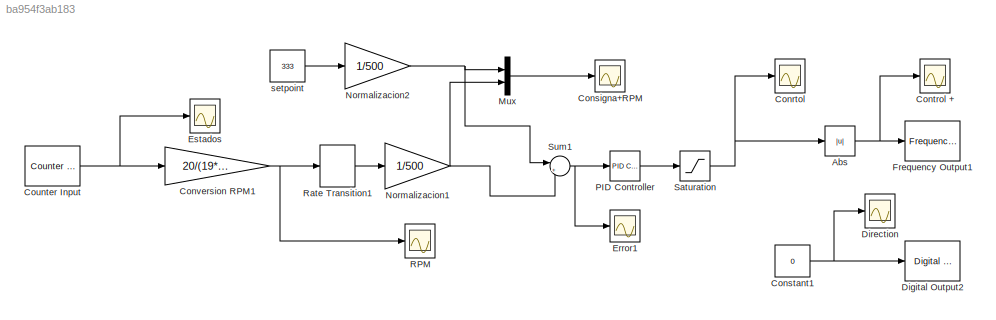
MODEL slx_ba954f3ab183
KIND model
CONFIG AbsTol = auto
CONFIG FixedStep = T
CONFIG MaxStep = auto
CONFIG MinStep = auto
CONFIG RelTol = 1e-3
CONFIG SampleTimeConstraint = Unconstrained
CONFIG Solver = ode5
CONFIG SolverMode = Auto
CONFIG SolverName = ode5
CONFIG StartTime = 0.0
CONFIG StopTime = inf
BLOCK [Abs] Abs
  SaturateOnIntegerOverflow = off
BLOCK [Scope] Conrtol
  Ports = [1]
  ScopeSpecificationString = Simulink.scopes.TimeScopeBlockCfg('CurrentConfiguration', extmgr.ConfigurationSet(extmgr.Configuration('Core','General UI',true),extmgr.Configuration('Core','Source UI',true),extmgr.Configuration('Sources','WiredSimulink',true,'DataLoggingSaveFormat','Structure','DataLoggingDecimation','1','DataLoggingDecimateData',true),extmgr.Configuration('Visuals','Time Domain',true,'SerializedDisplays',{struc...<+1659ch>
BLOCK [Scope] Consigna+RPM
  Ports = [1]
  ScopeSpecificationString = Simulink.scopes.TimeScopeBlockCfg('CurrentConfiguration', extmgr.ConfigurationSet(extmgr.Configuration('Core','General UI',true),extmgr.Configuration('Core','Source UI',true),extmgr.Configuration('Sources','WiredSimulink',true,'DataLoggingVariableName','ScopeData2','DataLoggingSaveFormat','StructureWithTime','DataLoggingLimitDataPoints',true,'DataLoggingDecimation','1','DataLoggingDecimateData',tr...<+1750ch>
BLOCK [Constant] Constant1
  Value = 0
BLOCK [Scope] Control +
  Ports = [1]
  ScopeSpecificationString = Simulink.scopes.TimeScopeBlockCfg('CurrentConfiguration', extmgr.ConfigurationSet(extmgr.Configuration('Core','General UI',true),extmgr.Configuration('Core','Source UI',true),extmgr.Configuration('Sources','WiredSimulink',true,'DataLoggingVariableName','ScopeData3','DataLoggingSaveFormat','Structure','DataLoggingDecimation','1','DataLoggingDecimateData',true),extmgr.Configuration('Visuals','Time D...<+1689ch>
BLOCK [Gain] Conversion RPM1
  Gain = 20/(19*T)
  OutDataTypeStr = Inherit: Inherit via internal rule
  ParamDataTypeStr = Inherit: Inherit via internal rule
  SaturateOnIntegerOverflow = off
BLOCK [Reference] Counter Input  REF=sldrtlib/Counter Input
  AttributesFormatString = National Instruments\nPCI-6024E [auto]
  Ports = [0, 1]
  SourceBlock = sldrtlib/Counter Input
  SourceType = Simulink Desktop Real-Time Counter Input
BLOCK [Reference] Digital Output2  REF=sldrtlib/Digital Output
  AttributesFormatString = National Instruments\nPCI-6024E [auto]
  Ports = [1]
  SourceBlock = sldrtlib/Digital Output
  SourceType = Simulink Desktop Real-Time Digital Output
BLOCK [Scope] Direction
  Ports = [1]
  ScopeSpecificationString = Simulink.scopes.TimeScopeBlockCfg('CurrentConfiguration', extmgr.ConfigurationSet(extmgr.Configuration('Core','General UI',true),extmgr.Configuration('Core','Source UI',true),extmgr.Configuration('Sources','WiredSimulink',true,'DataLoggingVariableName','ScopeData1','DataLoggingSaveFormat','Structure','DataLoggingDecimation','1','DataLoggingDecimateData',true),extmgr.Configuration('Visuals','Time D...<+1671ch>
BLOCK [Scope] Error1
  Ports = [1]
  ScopeSpecificationString = Simulink.scopes.TimeScopeBlockCfg('CurrentConfiguration', extmgr.ConfigurationSet(extmgr.Configuration('Core','General UI',true),extmgr.Configuration('Core','Source UI',true),extmgr.Configuration('Sources','WiredSimulink',true,'DataLoggingVariableName','ScopeData7','DataLoggingSaveFormat','StructureWithTime','DataLoggingLimitDataPoints',true,'DataLoggingDecimation','1','DataLoggingDecimateData',tr...<+1695ch>
BLOCK [Scope] Estados
  Ports = [1]
  ScopeSpecificationString = Simulink.scopes.TimeScopeBlockCfg('CurrentConfiguration', extmgr.ConfigurationSet(extmgr.Configuration('Core','General UI',true),extmgr.Configuration('Core','Source UI',true),extmgr.Configuration('Sources','WiredSimulink',true,'DataLoggingVariableName','ScopeData6','DataLoggingSaveFormat','Structure','DataLoggingMaxPoints','100000','DataLoggingDecimation','1','DataLoggingDecimateData',true),extmgr...<+2324ch>
BLOCK [Reference] Frequency Output1  REF=sldrtlib/Frequency Output
  AttributesFormatString = National Instruments\nPCI-6024E [auto]
  Ports = [1]
  SourceBlock = sldrtlib/Frequency Output
  SourceType = Simulink Desktop Real-Time Frequency Output
BLOCK [Mux] Mux
  DisplayOption = bar
  Inputs = 2
  Ports = [2, 1]
BLOCK [Gain] Normalizacion1
  Gain = 1/500
  OutDataTypeStr = Inherit: Inherit via internal rule
  ParamDataTypeStr = Inherit: Inherit via internal rule
  SaturateOnIntegerOverflow = off
BLOCK [Gain] Normalizacion2
  Gain = 1/500
  OutDataTypeStr = Inherit: Inherit via internal rule
  ParamDataTypeStr = Inherit: Inherit via internal rule
  SaturateOnIntegerOverflow = off
BLOCK [Reference] PID Controller  REF=simulink_need_slupdate/PID Controller
  Ports = [1, 1]
  SourceBlock = simulink_need_slupdate/PID Controller
  SourceType = PID Controller
BLOCK [Scope] RPM
  Ports = [1]
  ScopeSpecificationString = Simulink.scopes.TimeScopeBlockCfg('CurrentConfiguration', extmgr.ConfigurationSet(extmgr.Configuration('Core','General UI',true),extmgr.Configuration('Core','Source UI',true),extmgr.Configuration('Sources','WiredSimulink',true,'DataLoggingVariableName','ScopeData4','DataLoggingSaveFormat','Structure','DataLoggingMaxPoints','100000','DataLoggingDecimation','1','DataLoggingDecimateData',true),extmgr...<+1784ch>
BLOCK [RateTransition] Rate Transition1
  OutPortSampleTime = T
BLOCK [Saturate] Saturation
  InputPortMap = u0
  LowerLimit = -1
  Ports = [1, 1]
  UpperLimit = 1
BLOCK [Sum] Sum1
  IconShape = round
  InputSameDT = off
  Inputs = |+-
  OutDataTypeStr = Inherit: Inherit via internal rule
  Ports = [2, 1]
  SaturateOnIntegerOverflow = off
BLOCK [Constant] setpoint
  Value = 333
NET Abs:1 -> Control +:1, Frequency Output1:1
NET Constant1:1 -> Digital Output2:1, Direction:1
NET Conversion RPM1:1 -> RPM:1, Rate Transition1:1
NET Counter Input:1 -> Conversion RPM1:1, Estados:1
LINE Mux:1 -> Consigna+RPM:1
NET Normalizacion1:1 -> Mux:2, Sum1:2
NET Normalizacion2:1 -> Mux:1, Sum1:1
LINE PID Controller:1 -> Saturation:1
LINE Rate Transition1:1 -> Normalizacion1:1
NET Saturation:1 -> Abs:1, Conrtol:1
NET Sum1:1 -> Error1:1, PID Controller:1
LINE setpoint:1 -> Normalizacion2:1
note: NET lines group one-source signal fan-out (src -> all destinations, sorted); 1:1 wires keep LINE
